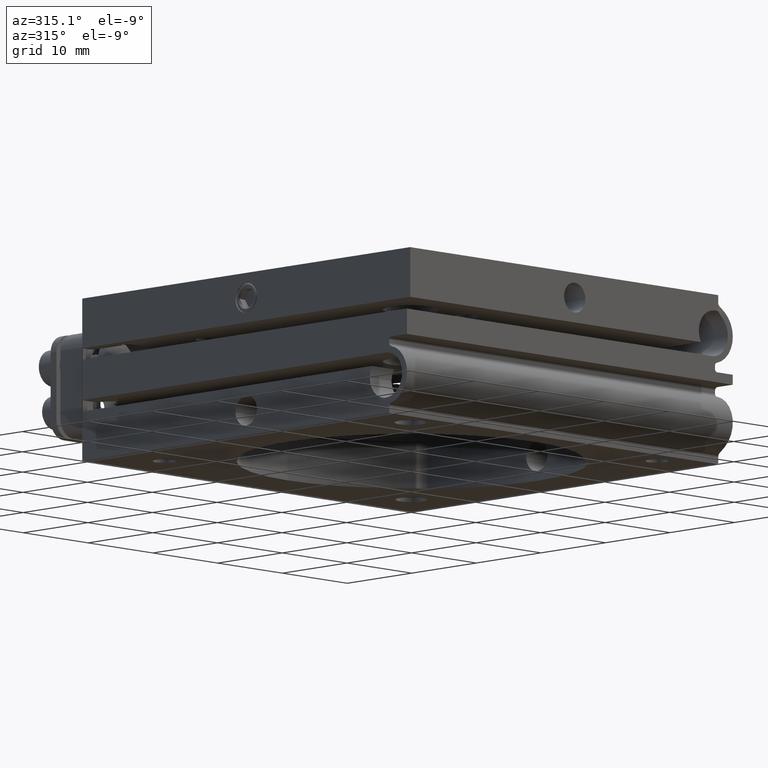
[diagram: clean part render]
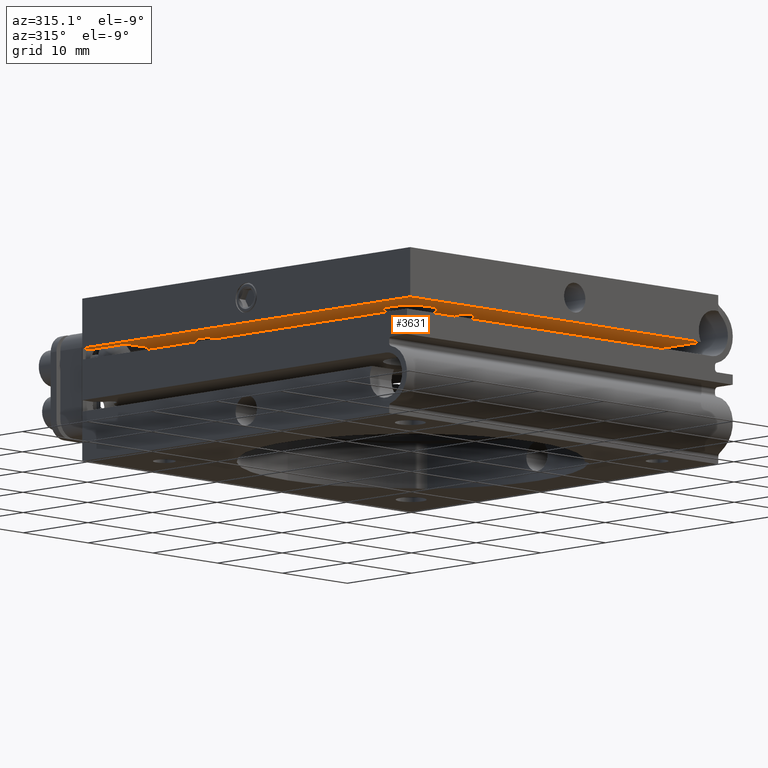
[diagram: same view with one face highlighted and labeled with its STEP entity id]
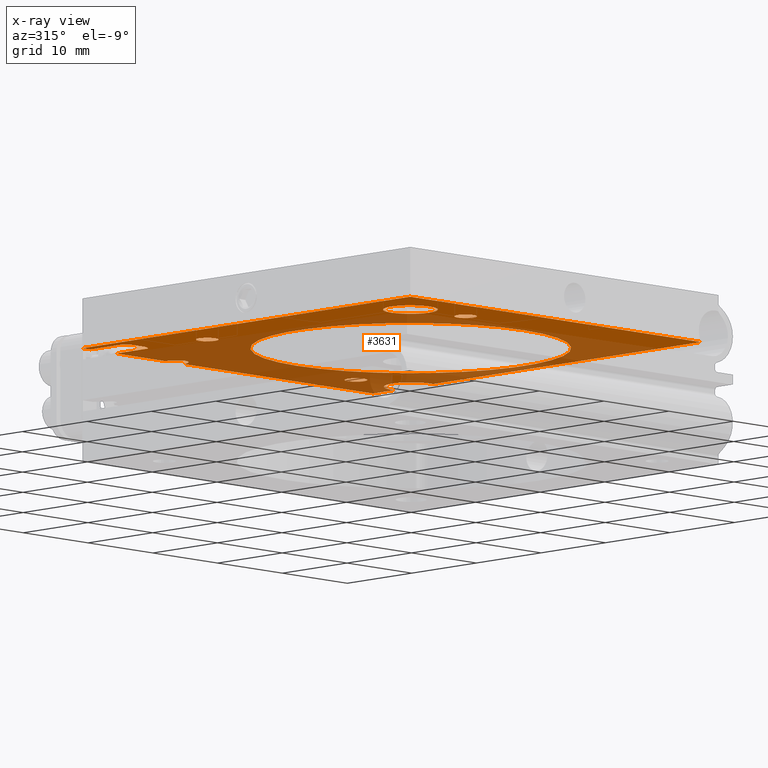
[diagram: x-ray of the same camera — body ghosted, the highlighted face saturated]
A machine part, auxiliary view. The second image highlights one B-rep face of the part: STEP entity #3631.
The next image is the same camera in x-ray: the body ghosted, the highlighted face saturated — about 56% of this face is hidden behind the body in this view.
In plain terms, the highlighted planar face has unit normal (-0, 0, 1).
Its self-contained STEP definition (entity closure, byte-faithful):
#19 = CARTESIAN_POINT ( 'NONE',  ( -19.99638492434327119, 11.46130893299262610, 3.499999999999997780 ) ) ;
#70 = LINE ( 'NONE', #8370, #4002 ) ;
#118 = DIRECTION ( 'NONE',  ( 0.000000000000000000, -1.000000000000000000, 0.000000000000000000 ) ) ;
#126 = ORIENTED_EDGE ( 'NONE', *, *, #5924, .F. ) ;
#134 = CARTESIAN_POINT ( 'NONE',  ( -20.49298032511788747, 20.23479922913430684, 3.499999999999998668 ) ) ;
#151 = CARTESIAN_POINT ( 'NONE',  ( -24.14202864369669399, 20.39999999999999503, 3.499999999999997335 ) ) ;
#154 = ORIENTED_EDGE ( 'NONE', *, *, #6143, .T. ) ;
#186 = CARTESIAN_POINT ( 'NONE',  ( -21.27302652511948722, 19.89999999999999503, 3.499999999999998224 ) ) ;
#212 = VERTEX_POINT ( 'NONE', #8768 ) ;
#258 = VERTEX_POINT ( 'NONE', #3116 ) ;
#284 = DIRECTION ( 'NONE',  ( 0.000000000000000000, -1.000000000000000000, 5.551115123125781470E-17 ) ) ;
#285 = CARTESIAN_POINT ( 'NONE',  ( 19.05000000000000426, 19.05000000000000426, 3.499999999999997780 ) ) ;
#328 = EDGE_CURVE ( 'NONE', #8721, #2473, #1019, .T. ) ;
#477 = CARTESIAN_POINT ( 'NONE',  ( -11.46130893299262610, -19.99638492434328185, 3.499999999999999556 ) ) ;
#809 = EDGE_LOOP ( 'NONE', ( #10396, #9006 ) ) ;
#812 = CIRCLE ( 'NONE', #8794, 1.249999999999997558 ) ;
#815 = CARTESIAN_POINT ( 'NONE',  ( 1.260513823276581445E-16, 19.90000000000000213, 3.499999999999997335 ) ) ;
#858 = VECTOR ( 'NONE', #4432, 1000.000000000000000 ) ;
#916 = EDGE_CURVE ( 'NONE', #6007, #6610, #2034, .T. ) ;
#920 = DIRECTION ( 'NONE',  ( 1.000000000000000000, 1.493774482935619390E-16, 0.000000000000000000 ) ) ;
#927 = DIRECTION ( 'NONE',  ( -0.000000000000000000, 1.000000000000000000, -5.551115123125781470E-17 ) ) ;
#962 = DIRECTION ( 'NONE',  ( -0.000000000000000000, 1.000000000000000000, -5.551115123125781470E-17 ) ) ;
#984 = VERTEX_POINT ( 'NONE', #7149 ) ;
#1002 = CARTESIAN_POINT ( 'NONE',  ( -23.40211734812827871, 19.97879214942425108, 3.499999999999998224 ) ) ;
#1019 = CIRCLE ( 'NONE', #8834, 1.249999999999997558 ) ;
#1037 = AXIS2_PLACEMENT_3D ( 'NONE', #19, #8261, #3481 ) ;
#1101 = DIRECTION ( 'NONE',  ( 9.244463733058732095E-33, -5.551115123125781470E-17, -1.000000000000000000 ) ) ;
#1104 = VERTEX_POINT ( 'NONE', #10664 ) ;
#1451 = DIRECTION ( 'NONE',  ( 9.244463733058732095E-33, -5.551115123125781470E-17, -1.000000000000000000 ) ) ;
#1460 = VERTEX_POINT ( 'NONE', #8222 ) ;
#1470 = EDGE_CURVE ( 'NONE', #1104, #6610, #3245, .T. ) ;
#1496 = VECTOR ( 'NONE', #962, 1000.000000000000000 ) ;
#1535 = VERTEX_POINT ( 'NONE', #9292 ) ;
#1537 = EDGE_CURVE ( 'NONE', #6007, #5695, #10317, .T. ) ;
#1568 = DIRECTION ( 'NONE',  ( 0.000000000000000000, -1.000000000000000000, 0.000000000000000000 ) ) ;
#1579 = CARTESIAN_POINT ( 'NONE',  ( -19.99638492434327119, 10.21130893299262787, 3.499999999999997780 ) ) ;
#1592 = LINE ( 'NONE', #3885, #8672 ) ;
#1619 = CARTESIAN_POINT ( 'NONE',  ( -11.46130893299262610, -21.24638492434327830, 3.499999999999999556 ) ) ;
#1639 = CARTESIAN_POINT ( 'NONE',  ( -20.64179830395962156, 20.10422036158460557, 3.499999999999997335 ) ) ;
#1672 = CARTESIAN_POINT ( 'NONE',  ( -23.94999999999999218, 20.39999999999999858, 3.499999999999997335 ) ) ;
#1747 = VECTOR ( 'NONE', #9940, 1000.000000000000000 ) ;
#1749 = DIRECTION ( 'NONE',  ( 0.000000000000000000, -1.000000000000000000, 0.000000000000000000 ) ) ;
#1750 = CARTESIAN_POINT ( 'NONE',  ( -11.14999999999999503, 23.70294372515229497, 3.499999999999997780 ) ) ;
#1772 = AXIS2_PLACEMENT_3D ( 'NONE', #5647, #6622, #8960 ) ;
#1811 = VERTEX_POINT ( 'NONE', #9380 ) ;
#1813 = CARTESIAN_POINT ( 'NONE',  ( 11.46130893299262965, 21.24638492434328896, 3.499999999999997780 ) ) ;
#1836 = EDGE_CURVE ( 'NONE', #10731, #8460, #1592, .T. ) ;
#1839 = DIRECTION ( 'NONE',  ( 0.000000000000000000, -1.000000000000000000, 0.000000000000000000 ) ) ;
#1889 = VECTOR ( 'NONE', #284, 1000.000000000000000 ) ;
#1961 = DIRECTION ( 'NONE',  ( 0.000000000000000000, -1.000000000000000000, 4.942232125290048605E-17 ) ) ;
#1993 = CARTESIAN_POINT ( 'NONE',  ( -21.36937525020019635, 19.89999999999999858, 3.499999999999997335 ) ) ;
#1999 = VERTEX_POINT ( 'NONE', #2125 ) ;
#2017 = EDGE_CURVE ( 'NONE', #984, #2723, #5369, .T. ) ;
#2034 = LINE ( 'NONE', #6063, #858 ) ;
#2086 = ORIENTED_EDGE ( 'NONE', *, *, #1836, .T. ) ;
#2125 = CARTESIAN_POINT ( 'NONE',  ( -22.93062474979979726, 19.89999999999999503, 3.499999999999997335 ) ) ;
#2158 = DIRECTION ( 'NONE',  ( 9.244463733058732095E-33, -5.551115123125781470E-17, -1.000000000000000000 ) ) ;
#2254 = EDGE_CURVE ( 'NONE', #1535, #7985, #4737, .T. ) ;
#2280 = DIRECTION ( 'NONE',  ( 0.000000000000000000, -1.000000000000000000, 5.551115123125781470E-17 ) ) ;
#2374 = EDGE_CURVE ( 'NONE', #7985, #1460, #70, .T. ) ;
#2386 = EDGE_CURVE ( 'NONE', #5695, #8027, #10690, .T. ) ;
#2421 = VERTEX_POINT ( 'NONE', #7038 ) ;
#2437 = AXIS2_PLACEMENT_3D ( 'NONE', #5580, #1451, #7802 ) ;
#2461 = DIRECTION ( 'NONE',  ( -8.095376221225111344E-15, -1.000000000000000000, 0.000000000000000000 ) ) ;
#2473 = VERTEX_POINT ( 'NONE', #5524 ) ;
#2500 = EDGE_CURVE ( 'NONE', #2421, #10561, #4344, .T. ) ;
#2523 = CARTESIAN_POINT ( 'NONE',  ( -3.235562306570555686E-32, -17.55000000000000071, 3.500000000000000444 ) ) ;
#2531 = ORIENTED_EDGE ( 'NONE', *, *, #916, .T. ) ;
#2586 = ORIENTED_EDGE ( 'NONE', *, *, #8480, .F. ) ;
#2669 = VERTEX_POINT ( 'NONE', #151 ) ;
#2700 = LINE ( 'NONE', #5192, #1496 ) ;
#2723 = VERTEX_POINT ( 'NONE', #2962 ) ;
#2728 = CARTESIAN_POINT ( 'NONE',  ( -20.15797135630329961, -25.39999999999999858, 3.500000000000000000 ) ) ;
#2735 = CARTESIAN_POINT ( 'NONE',  ( 25.40000000000000213, 25.40000000000000568, 3.499999999999997780 ) ) ;
#2828 = AXIS2_PLACEMENT_3D ( 'NONE', #6093, #1101, #1961 ) ;
#2962 = CARTESIAN_POINT ( 'NONE',  ( 19.48493649053890309, 22.01830427166719062, 3.499999999999998224 ) ) ;
#3037 = PLANE ( 'NONE',  #5038 ) ;
#3048 = AXIS2_PLACEMENT_3D ( 'NONE', #10698, #3267, #2461 ) ;
#3064 = DIRECTION ( 'NONE',  ( 1.000000000000000000, 8.108124845195533390E-17, 0.000000000000000000 ) ) ;
#3116 = CARTESIAN_POINT ( 'NONE',  ( 19.05000000000000426, 16.05000000000000782, 3.499999999999997780 ) ) ;
#3155 = VERTEX_POINT ( 'NONE', #10321 ) ;
#3203 = DIRECTION ( 'NONE',  ( -1.000000000000000000, -1.143648977279918992E-16, 0.000000000000000000 ) ) ;
#3245 =( BOUNDED_CURVE ( )  B_SPLINE_CURVE ( 3, ( #1750, #6693, #9191, #5069 ),
 .UNSPECIFIED., .F., .F. ) 
 B_SPLINE_CURVE_WITH_KNOTS ( ( 4, 4 ),
 ( 3.141592653589793116, 4.511031059594352577 ),
 .UNSPECIFIED. ) 
 CURVE ( )  GEOMETRIC_REPRESENTATION_ITEM ( )  RATIONAL_B_SPLINE_CURVE ( ( 1.000000000000000000, 0.8497311128276568981, 0.8497311128276568981, 1.000000000000000000 ) ) 
 REPRESENTATION_ITEM ( '' )  );
#3257 = CARTESIAN_POINT ( 'NONE',  ( -20.35000000000000497, 20.39999999999999858, 3.499999999999997335 ) ) ;
#3267 = DIRECTION ( 'NONE',  ( 9.244463733058732095E-33, -5.551115123125781470E-17, -1.000000000000000000 ) ) ;
#3306 = AXIS2_PLACEMENT_3D ( 'NONE', #7867, #2158, #7697 ) ;
#3307 = EDGE_CURVE ( 'NONE', #8837, #9812, #6065, .T. ) ;
#3318 = DIRECTION ( 'NONE',  ( 9.244463733058732095E-33, -5.551115123125781470E-17, -1.000000000000000000 ) ) ;
#3342 = CARTESIAN_POINT ( 'NONE',  ( -23.80729967093525445, 20.23525618515002833, 3.499999999999998668 ) ) ;
#3481 = DIRECTION ( 'NONE',  ( 0.000000000000000000, -1.000000000000000000, 0.000000000000000000 ) ) ;
#3482 = ORIENTED_EDGE ( 'NONE', *, *, #10031, .F. ) ;
#3495 = AXIS2_PLACEMENT_3D ( 'NONE', #477, #4602, #4549 ) ;
#3502 = CARTESIAN_POINT ( 'NONE',  ( -23.90824509314511204, 20.39999999999999858, 3.499999999999997780 ) ) ;
#3574 = CARTESIAN_POINT ( 'NONE',  ( -20.39175490685488157, 20.39999999999999858, 3.499999999999997780 ) ) ;
#3631 = ADVANCED_FACE ( 'NONE', ( #4833, #9011, #8798, #10469, #4018, #7332 ), #3037, .F. ) ;
#3660 = B_SPLINE_CURVE_WITH_KNOTS ( 'NONE', 3,
 ( #3502, #3342, #10122, #1002, #6755, #4266, #5889, #9910 ),
 .UNSPECIFIED., .F., .F.,
 ( 4, 2, 2, 4 ),
 ( 0.000000000000000000, 0.0005709922195212330980, 0.0008564883292818518696, 0.001141984439042470750 ),
 .UNSPECIFIED. ) ;
#3730 = EDGE_LOOP ( 'NONE', ( #3482, #8982 ) ) ;
#3764 = CARTESIAN_POINT ( 'NONE',  ( -25.39999999999999503, 25.40000000000000213, 3.499999999999997335 ) ) ;
#3885 = CARTESIAN_POINT ( 'NONE',  ( 25.40000000000000213, 25.40000000000000568, 3.499999999999997780 ) ) ;
#3913 = CARTESIAN_POINT ( 'NONE',  ( -12.61969384566990016, 25.40000000000000213, 3.499999999999997780 ) ) ;
#3980 = EDGE_LOOP ( 'NONE', ( #5540, #10658 ) ) ;
#4002 = VECTOR ( 'NONE', #927, 1000.000000000000000 ) ;
#4018 = FACE_BOUND ( 'NONE', #5281, .T. ) ;
#4129 = CIRCLE ( 'NONE', #6551, 2.999999999999999112 ) ;
#4180 = DIRECTION ( 'NONE',  ( 9.244463733058732095E-33, -5.551115123125781470E-17, -1.000000000000000000 ) ) ;
#4235 = CARTESIAN_POINT ( 'NONE',  ( -19.05000000000000782, -19.05000000000000426, 3.499999999999999556 ) ) ;
#4258 = CARTESIAN_POINT ( 'NONE',  ( -20.89983015879119321, 19.97801494806878608, 3.499999999999997335 ) ) ;
#4266 = CARTESIAN_POINT ( 'NONE',  ( -23.12314769627586486, 19.90870715995429308, 3.499999999999998668 ) ) ;
#4270 = VERTEX_POINT ( 'NONE', #3764 ) ;
#4344 = CIRCLE ( 'NONE', #2437, 17.55000000000000071 ) ;
#4346 = CARTESIAN_POINT ( 'NONE',  ( -19.05000000000000782, -19.05000000000000426, 3.499999999999999556 ) ) ;
#4397 = EDGE_LOOP ( 'NONE', ( #6410, #7910 ) ) ;
#4432 = DIRECTION ( 'NONE',  ( 1.000000000000000000, 8.108124845195533390E-17, 0.000000000000000000 ) ) ;
#4434 = VECTOR ( 'NONE', #3203, 1000.000000000000000 ) ;
#4500 = ORIENTED_EDGE ( 'NONE', *, *, #7643, .F. ) ;
#4543 = ORIENTED_EDGE ( 'NONE', *, *, #1470, .F. ) ;
#4549 = DIRECTION ( 'NONE',  ( 0.000000000000000000, -1.000000000000000000, 0.000000000000000000 ) ) ;
#4568 = CARTESIAN_POINT ( 'NONE',  ( -9.680306154330089896, 25.40000000000000213, 3.499999999999997780 ) ) ;
#4602 = DIRECTION ( 'NONE',  ( 9.244463733058732095E-33, -5.551115123125781470E-17, -1.000000000000000000 ) ) ;
#4689 = AXIS2_PLACEMENT_3D ( 'NONE', #285, #9567, #7886 ) ;
#4717 = VECTOR ( 'NONE', #9254, 1000.000000000000000 ) ;
#4737 = LINE ( 'NONE', #7286, #6430 ) ;
#4833 = FACE_OUTER_BOUND ( 'NONE', #8682, .T. ) ;
#4926 = EDGE_CURVE ( 'NONE', #2669, #8180, #9114, .T. ) ;
#5038 = AXIS2_PLACEMENT_3D ( 'NONE', #6507, #9661, #2280 ) ;
#5042 = VECTOR ( 'NONE', #920, 1000.000000000000000 ) ;
#5053 = EDGE_CURVE ( 'NONE', #6743, #3155, #8688, .T. ) ;
#5069 = CARTESIAN_POINT ( 'NONE',  ( -12.61969384566990016, 25.40000000000000213, 3.499999999999997780 ) ) ;
#5192 = CARTESIAN_POINT ( 'NONE',  ( 19.48493649053890309, -25.39999999999999858, 3.500000000000000000 ) ) ;
#5281 = EDGE_LOOP ( 'NONE', ( #8978, #8832 ) ) ;
#5314 = VECTOR ( 'NONE', #6381, 1000.000000000000000 ) ;
#5324 = CARTESIAN_POINT ( 'NONE',  ( -11.14999999999999503, 23.70294372515229497, 3.499999999999997780 ) ) ;
#5350 = CARTESIAN_POINT ( 'NONE',  ( -24.14202864369670110, -25.39999999999999858, 3.500000000000000000 ) ) ;
#5369 = CIRCLE ( 'NONE', #4689, 2.999999999999995559 ) ;
#5426 = EDGE_CURVE ( 'NONE', #3155, #6743, #6269, .T. ) ;
#5524 = CARTESIAN_POINT ( 'NONE',  ( 11.46130893299262965, 18.74638492434329251, 3.499999999999997780 ) ) ;
#5540 = ORIENTED_EDGE ( 'NONE', *, *, #5053, .F. ) ;
#5580 = CARTESIAN_POINT ( 'NONE',  ( -3.235562306570555686E-32, 1.942890293094022713E-16, 3.499999999999999556 ) ) ;
#5647 = CARTESIAN_POINT ( 'NONE',  ( 11.46130893299262965, 19.99638492434329251, 3.499999999999997780 ) ) ;
#5695 = VERTEX_POINT ( 'NONE', #6867 ) ;
#5730 = CARTESIAN_POINT ( 'NONE',  ( -20.15797135630330317, 25.39999999999999858, 3.499999999999997335 ) ) ;
#5749 = ORIENTED_EDGE ( 'NONE', *, *, #7884, .F. ) ;
#5764 = AXIS2_PLACEMENT_3D ( 'NONE', #4235, #4180, #1568 ) ;
#5769 = ORIENTED_EDGE ( 'NONE', *, *, #4926, .T. ) ;
#5775 = DIRECTION ( 'NONE',  ( 9.244463733058732095E-33, -5.551115123125781470E-17, -1.000000000000000000 ) ) ;
#5829 = LINE ( 'NONE', #8390, #4717 ) ;
#5882 = CARTESIAN_POINT ( 'NONE',  ( -21.17818373449233960, 19.90856972850674467, 3.499999999999996891 ) ) ;
#5889 = CARTESIAN_POINT ( 'NONE',  ( -23.02694190994333923, 19.89999999999999858, 3.499999999999996891 ) ) ;
#5923 = ORIENTED_EDGE ( 'NONE', *, *, #2017, .F. ) ;
#5924 = EDGE_CURVE ( 'NONE', #4270, #1535, #5829, .T. ) ;
#5939 = CARTESIAN_POINT ( 'NONE',  ( -24.14202864369669399, 25.39999999999999858, 3.499999999999997335 ) ) ;
#5950 = ORIENTED_EDGE ( 'NONE', *, *, #9879, .F. ) ;
#5974 = DIRECTION ( 'NONE',  ( 9.244463733058732095E-33, -5.551115123125781470E-17, -1.000000000000000000 ) ) ;
#5988 = CARTESIAN_POINT ( 'NONE',  ( -21.36937525020019635, 19.89999999999999858, 3.499999999999997335 ) ) ;
#6004 = ORIENTED_EDGE ( 'NONE', *, *, #9560, .T. ) ;
#6007 = VERTEX_POINT ( 'NONE', #5730 ) ;
#6029 = CARTESIAN_POINT ( 'NONE',  ( -10.40569921768658013, 23.70294372515229497, 3.499999999999996447 ) ) ;
#6063 = CARTESIAN_POINT ( 'NONE',  ( 25.40000000000000213, 25.40000000000000568, 3.499999999999997780 ) ) ;
#6065 = CIRCLE ( 'NONE', #1037, 1.249999999999997558 ) ;
#6093 = CARTESIAN_POINT ( 'NONE',  ( -3.235562306570555686E-32, 1.942890293094022713E-16, 3.499999999999999556 ) ) ;
#6116 = ORIENTED_EDGE ( 'NONE', *, *, #8411, .F. ) ;
#6126 = CARTESIAN_POINT ( 'NONE',  ( 19.48493649053890664, -25.39999999999999858, 3.500000000000000000 ) ) ;
#6143 = EDGE_CURVE ( 'NONE', #4270, #9589, #8710, .T. ) ;
#6191 = CARTESIAN_POINT ( 'NONE',  ( -9.829166310792777139, 24.36866658313592282, 3.499999999999996447 ) ) ;
#6199 = DIRECTION ( 'NONE',  ( 1.000000000000000000, 8.108124845195533390E-17, 0.000000000000000000 ) ) ;
#6269 = CIRCLE ( 'NONE', #3495, 1.249999999999997558 ) ;
#6284 = CIRCLE ( 'NONE', #5764, 2.999999999999999112 ) ;
#6381 = DIRECTION ( 'NONE',  ( -0.000000000000000000, 1.000000000000000000, -5.551115123125781470E-17 ) ) ;
#6410 = ORIENTED_EDGE ( 'NONE', *, *, #6766, .F. ) ;
#6430 = VECTOR ( 'NONE', #8045, 1000.000000000000000 ) ;
#6458 = CIRCLE ( 'NONE', #1772, 1.249999999999997558 ) ;
#6501 = CARTESIAN_POINT ( 'NONE',  ( -23.90824509314511204, 20.39999999999999858, 3.499999999999997780 ) ) ;
#6507 = CARTESIAN_POINT ( 'NONE',  ( 21.65000000000000568, -25.39999999999999858, 3.500000000000000000 ) ) ;
#6517 = CARTESIAN_POINT ( 'NONE',  ( -19.99638492434327119, 12.71130893299262254, 3.499999999999997780 ) ) ;
#6518 = DIRECTION ( 'NONE',  ( 0.000000000000000000, -1.000000000000000000, 0.000000000000000000 ) ) ;
#6551 = AXIS2_PLACEMENT_3D ( 'NONE', #4346, #5974, #1839 ) ;
#6610 = VERTEX_POINT ( 'NONE', #3913 ) ;
#6622 = DIRECTION ( 'NONE',  ( 9.244463733058732095E-33, -5.551115123125781470E-17, -1.000000000000000000 ) ) ;
#6625 = LINE ( 'NONE', #815, #4434 ) ;
#6626 = VECTOR ( 'NONE', #6199, 1000.000000000000000 ) ;
#6683 = CIRCLE ( 'NONE', #3048, 2.999999999999995559 ) ;
#6693 = CARTESIAN_POINT ( 'NONE',  ( -11.89430078231340993, 23.70294372515229497, 3.499999999999997780 ) ) ;
#6733 = CARTESIAN_POINT ( 'NONE',  ( 19.05000000000000426, 19.05000000000000426, 3.499999999999997780 ) ) ;
#6743 = VERTEX_POINT ( 'NONE', #1619 ) ;
#6747 = CARTESIAN_POINT ( 'NONE',  ( -20.39175490685488157, 20.39999999999999858, 3.499999999999997780 ) ) ;
#6755 = CARTESIAN_POINT ( 'NONE',  ( -23.30989251491177683, 19.94786419585643600, 3.499999999999998668 ) ) ;
#6766 = EDGE_CURVE ( 'NONE', #2473, #8721, #6458, .T. ) ;
#6800 = EDGE_CURVE ( 'NONE', #212, #1811, #6284, .T. ) ;
#6867 = CARTESIAN_POINT ( 'NONE',  ( -20.15797135630330317, 20.39999999999999503, 3.499999999999997335 ) ) ;
#7038 = CARTESIAN_POINT ( 'NONE',  ( 2.149255132503604927E-15, 17.55000000000000071, 3.499999999999998668 ) ) ;
#7088 = CARTESIAN_POINT ( 'NONE',  ( 19.48493649053890309, 25.40000000000000568, 3.499999999999997335 ) ) ;
#7096 = EDGE_CURVE ( 'NONE', #8180, #1999, #3660, .T. ) ;
#7149 = CARTESIAN_POINT ( 'NONE',  ( 19.05000000000000426, 22.05000000000000071, 3.499999999999997780 ) ) ;
#7200 = LINE ( 'NONE', #5350, #5314 ) ;
#7286 = CARTESIAN_POINT ( 'NONE',  ( 21.65000000000000568, -25.39999999999999858, 3.500000000000000000 ) ) ;
#7332 = FACE_BOUND ( 'NONE', #3730, .T. ) ;
#7367 = ORIENTED_EDGE ( 'NONE', *, *, #7096, .T. ) ;
#7460 = CARTESIAN_POINT ( 'NONE',  ( 11.46130893299262965, 19.99638492434329251, 3.499999999999997780 ) ) ;
#7501 = ORIENTED_EDGE ( 'NONE', *, *, #2386, .F. ) ;
#7595 = CIRCLE ( 'NONE', #8125, 2.999999999999995559 ) ;
#7599 = EDGE_CURVE ( 'NONE', #1460, #258, #6683, .T. ) ;
#7643 = EDGE_CURVE ( 'NONE', #10731, #1104, #8103, .T. ) ;
#7697 = DIRECTION ( 'NONE',  ( 0.000000000000000000, -1.000000000000000000, 0.000000000000000000 ) ) ;
#7802 = DIRECTION ( 'NONE',  ( 0.000000000000000000, -1.000000000000000000, 4.942232125290048605E-17 ) ) ;
#7838 = CARTESIAN_POINT ( 'NONE',  ( -9.680306154330089896, 25.40000000000000213, 3.499999999999997780 ) ) ;
#7861 = B_SPLINE_CURVE_WITH_KNOTS ( 'NONE', 3,
 ( #5988, #186, #5882, #9193, #4258, #1639, #134, #6747 ),
 .UNSPECIFIED., .F., .F.,
 ( 4, 2, 2, 4 ),
 ( 0.000000000000000000, 0.0002846840654872660552, 0.0005693681309745321105, 0.001138736261949068775 ),
 .UNSPECIFIED. ) ;
#7867 = CARTESIAN_POINT ( 'NONE',  ( -11.46130893299262610, -19.99638492434328185, 3.499999999999999556 ) ) ;
#7884 = EDGE_CURVE ( 'NONE', #10047, #1999, #6625, .T. ) ;
#7886 = DIRECTION ( 'NONE',  ( 0.000000000000000000, -1.000000000000000000, 0.000000000000000000 ) ) ;
#7910 = ORIENTED_EDGE ( 'NONE', *, *, #328, .F. ) ;
#7985 = VERTEX_POINT ( 'NONE', #6126 ) ;
#8027 = VERTEX_POINT ( 'NONE', #3574 ) ;
#8045 = DIRECTION ( 'NONE',  ( 1.000000000000000000, 5.131708243377014121E-49, 9.244463733058732095E-33 ) ) ;
#8103 =( BOUNDED_CURVE ( )  B_SPLINE_CURVE ( 3, ( #4568, #6191, #6029, #5324 ),
 .UNSPECIFIED., .F., .T. ) 
 B_SPLINE_CURVE_WITH_KNOTS ( ( 4, 4 ),
 ( 1.772154247585235431, 3.141592653589793116 ),
 .UNSPECIFIED. ) 
 CURVE ( )  GEOMETRIC_REPRESENTATION_ITEM ( )  RATIONAL_B_SPLINE_CURVE ( ( 1.000000000000000000, 0.8497311128276573422, 0.8497311128276573422, 1.000000000000000000 ) ) 
 REPRESENTATION_ITEM ( '' )  );
#8125 = AXIS2_PLACEMENT_3D ( 'NONE', #6733, #3318, #118 ) ;
#8180 = VERTEX_POINT ( 'NONE', #6501 ) ;
#8203 = ORIENTED_EDGE ( 'NONE', *, *, #1537, .F. ) ;
#8222 = CARTESIAN_POINT ( 'NONE',  ( 19.48493649053890309, 16.08169572833281791, 3.499999999999997780 ) ) ;
#8261 = DIRECTION ( 'NONE',  ( 9.244463733058732095E-33, -5.551115123125781470E-17, -1.000000000000000000 ) ) ;
#8285 = ORIENTED_EDGE ( 'NONE', *, *, #2254, .F. ) ;
#8370 = CARTESIAN_POINT ( 'NONE',  ( 19.48493649053890664, -25.39999999999999858, 3.500000000000000000 ) ) ;
#8390 = CARTESIAN_POINT ( 'NONE',  ( -25.39999999999999503, -25.39999999999999858, 3.500000000000000000 ) ) ;
#8411 = EDGE_CURVE ( 'NONE', #2723, #8460, #2700, .T. ) ;
#8460 = VERTEX_POINT ( 'NONE', #7088 ) ;
#8480 = EDGE_CURVE ( 'NONE', #2669, #9589, #7200, .T. ) ;
#8672 = VECTOR ( 'NONE', #3064, 1000.000000000000000 ) ;
#8682 = EDGE_LOOP ( 'NONE', ( #8285, #126, #154, #2586, #5769, #7367, #5749, #6004, #7501, #8203, #2531, #4543, #4500, #2086, #6116, #5923, #5950, #8774, #10728 ) ) ;
#8688 = CIRCLE ( 'NONE', #3306, 1.249999999999997558 ) ;
#8710 = LINE ( 'NONE', #2735, #6626 ) ;
#8721 = VERTEX_POINT ( 'NONE', #1813 ) ;
#8768 = CARTESIAN_POINT ( 'NONE',  ( -19.05000000000000782, -16.05000000000000426, 3.499999999999999556 ) ) ;
#8774 = ORIENTED_EDGE ( 'NONE', *, *, #7599, .F. ) ;
#8794 = AXIS2_PLACEMENT_3D ( 'NONE', #9023, #9782, #6518 ) ;
#8798 = FACE_BOUND ( 'NONE', #3980, .T. ) ;
#8832 = ORIENTED_EDGE ( 'NONE', *, *, #8836, .F. ) ;
#8834 = AXIS2_PLACEMENT_3D ( 'NONE', #7460, #5775, #1749 ) ;
#8836 = EDGE_CURVE ( 'NONE', #9812, #8837, #812, .T. ) ;
#8837 = VERTEX_POINT ( 'NONE', #1579 ) ;
#8960 = DIRECTION ( 'NONE',  ( 0.000000000000000000, -1.000000000000000000, 0.000000000000000000 ) ) ;
#8978 = ORIENTED_EDGE ( 'NONE', *, *, #3307, .F. ) ;
#8982 = ORIENTED_EDGE ( 'NONE', *, *, #6800, .F. ) ;
#9006 = ORIENTED_EDGE ( 'NONE', *, *, #2500, .F. ) ;
#9011 = FACE_BOUND ( 'NONE', #809, .T. ) ;
#9023 = CARTESIAN_POINT ( 'NONE',  ( -19.99638492434327119, 11.46130893299262610, 3.499999999999997780 ) ) ;
#9114 = LINE ( 'NONE', #1672, #5042 ) ;
#9191 = CARTESIAN_POINT ( 'NONE',  ( -12.47083368920721647, 24.36866658313592282, 3.499999999999997780 ) ) ;
#9193 = CARTESIAN_POINT ( 'NONE',  ( -20.99228665342668876, 19.94726817036719169, 3.499999999999996447 ) ) ;
#9254 = DIRECTION ( 'NONE',  ( 0.000000000000000000, -1.000000000000000000, 5.551115123125781470E-17 ) ) ;
#9292 = CARTESIAN_POINT ( 'NONE',  ( -25.39999999999999503, -25.39999999999999503, 3.500000000000000000 ) ) ;
#9380 = CARTESIAN_POINT ( 'NONE',  ( -19.05000000000000782, -22.05000000000000426, 3.499999999999999556 ) ) ;
#9560 = EDGE_CURVE ( 'NONE', #10047, #8027, #7861, .T. ) ;
#9567 = DIRECTION ( 'NONE',  ( 9.244463733058732095E-33, -5.551115123125781470E-17, -1.000000000000000000 ) ) ;
#9589 = VERTEX_POINT ( 'NONE', #5939 ) ;
#9661 = DIRECTION ( 'NONE',  ( -9.244463733058732095E-33, 5.551115123125781470E-17, 1.000000000000000000 ) ) ;
#9771 = CIRCLE ( 'NONE', #2828, 17.55000000000000071 ) ;
#9782 = DIRECTION ( 'NONE',  ( 9.244463733058732095E-33, -5.551115123125781470E-17, -1.000000000000000000 ) ) ;
#9812 = VERTEX_POINT ( 'NONE', #6517 ) ;
#9879 = EDGE_CURVE ( 'NONE', #258, #984, #7595, .T. ) ;
#9910 = CARTESIAN_POINT ( 'NONE',  ( -22.93062474979979726, 19.89999999999999503, 3.499999999999997335 ) ) ;
#9940 = DIRECTION ( 'NONE',  ( -1.000000000000000000, -1.493774482935619390E-16, 0.000000000000000000 ) ) ;
#10031 = EDGE_CURVE ( 'NONE', #1811, #212, #4129, .T. ) ;
#10047 = VERTEX_POINT ( 'NONE', #1993 ) ;
#10122 = CARTESIAN_POINT ( 'NONE',  ( -23.65917905113537500, 20.10505410313844266, 3.499999999999997335 ) ) ;
#10317 = LINE ( 'NONE', #2728, #1889 ) ;
#10321 = CARTESIAN_POINT ( 'NONE',  ( -11.46130893299262610, -18.74638492434328541, 3.499999999999999556 ) ) ;
#10396 = ORIENTED_EDGE ( 'NONE', *, *, #10713, .F. ) ;
#10469 = FACE_BOUND ( 'NONE', #4397, .T. ) ;
#10561 = VERTEX_POINT ( 'NONE', #2523 ) ;
#10658 = ORIENTED_EDGE ( 'NONE', *, *, #5426, .F. ) ;
#10664 = CARTESIAN_POINT ( 'NONE',  ( -11.14999999999999503, 23.70294372515229497, 3.499999999999997780 ) ) ;
#10690 = LINE ( 'NONE', #3257, #1747 ) ;
#10698 = CARTESIAN_POINT ( 'NONE',  ( 19.05000000000000426, 19.05000000000000426, 3.499999999999997780 ) ) ;
#10713 = EDGE_CURVE ( 'NONE', #10561, #2421, #9771, .T. ) ;
#10728 = ORIENTED_EDGE ( 'NONE', *, *, #2374, .F. ) ;
#10731 = VERTEX_POINT ( 'NONE', #7838 ) ;